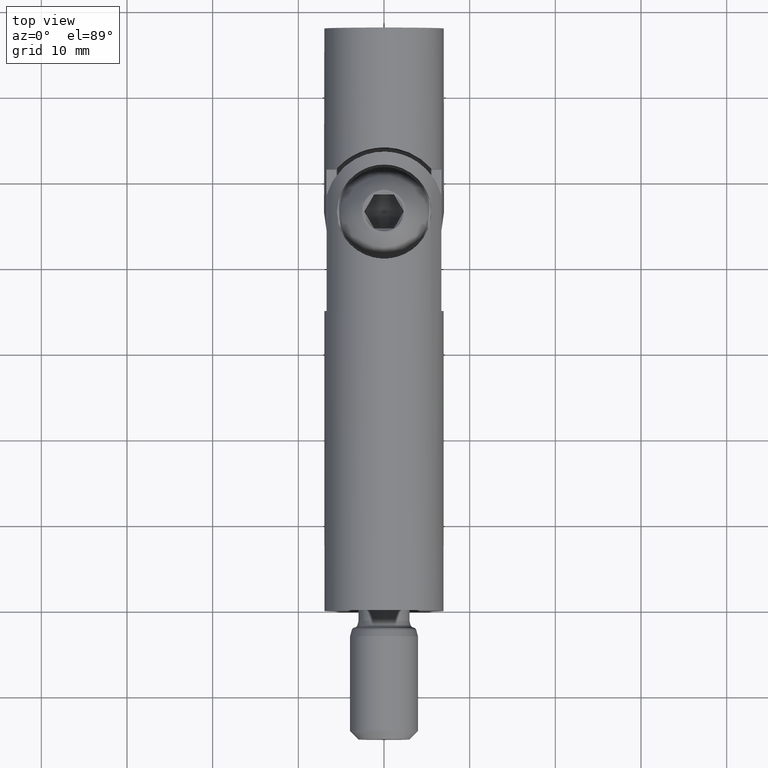
[diagram: clean part render]
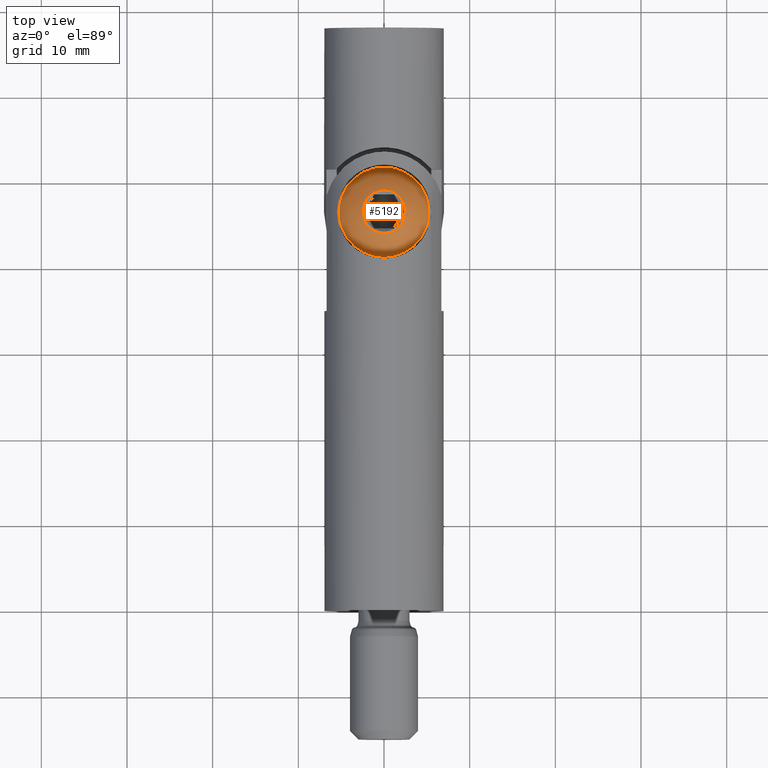
[diagram: same view with one face highlighted and labeled with its STEP entity id]
A machine part, top view. The second image highlights one B-rep face of the part: STEP entity #5192.
In plain terms, the highlighted spherical surface has radius 5.5869 mm.
Its self-contained STEP definition (entity closure, byte-faithful):
#2392 = AXIS2_PLACEMENT_3D ( 'NONE', #7958, #16735, #18208 ) ;
#3230 = EDGE_LOOP ( 'NONE', ( #16973 ) ) ;
#4066 = DIRECTION ( 'NONE',  ( 1.000000000000000000, 0.000000000000000000, 0.000000000000000000 ) ) ;
#5192 = ADVANCED_FACE ( 'NONE', ( #5825, #15868 ), #8772, .T. ) ;
#5199 = CARTESIAN_POINT ( 'NONE',  ( 0.000000000000000000, 0.000000000000000000, 0.000000000000000000 ) ) ;
#5825 = FACE_OUTER_BOUND ( 'NONE', #6389, .T. ) ;
#6389 = EDGE_LOOP ( 'NONE', ( #15273 ) ) ;
#6579 = DIRECTION ( 'NONE',  ( -0.000000000000000000, -1.000000000000000000, -0.000000000000000000 ) ) ;
#7270 = VERTEX_POINT ( 'NONE', #8577 ) ;
#7616 = AXIS2_PLACEMENT_3D ( 'NONE', #13017, #14310, #4066 ) ;
#7958 = CARTESIAN_POINT ( 'NONE',  ( 0.000000000000000000, 3.061350000000000016, 0.000000000000000000 ) ) ;
#8195 = VERTEX_POINT ( 'NONE', #13281 ) ;
#8577 = CARTESIAN_POINT ( 'NONE',  ( 0.000000000000000000, 3.061350000000000016, -5.250000000000000000 ) ) ;
#8772 = SPHERICAL_SURFACE ( 'NONE', #7616, 5.586852254659162575 ) ;
#9510 = DIRECTION ( 'NONE',  ( 0.000000000000000000, 0.000000000000000000, -1.000000000000000000 ) ) ;
#9876 = EDGE_CURVE ( 'NONE', #7270, #7270, #17674, .T. ) ;
#13017 = CARTESIAN_POINT ( 'NONE',  ( 0.000000000000000000, 4.971956740119527929, 0.000000000000000000 ) ) ;
#13281 = CARTESIAN_POINT ( 'NONE',  ( 0.000000000000000000, 0.000000000000000000, -2.548051076758501843 ) ) ;
#13780 = AXIS2_PLACEMENT_3D ( 'NONE', #5199, #6579, #9510 ) ;
#14310 = DIRECTION ( 'NONE',  ( 0.000000000000000000, 0.000000000000000000, 1.000000000000000000 ) ) ;
#15273 = ORIENTED_EDGE ( 'NONE', *, *, #9876, .T. ) ;
#15723 = CIRCLE ( 'NONE', #13780, 2.548051076758501843 ) ;
#15868 = FACE_OUTER_BOUND ( 'NONE', #3230, .T. ) ;
#16735 = DIRECTION ( 'NONE',  ( -0.000000000000000000, -1.000000000000000000, -0.000000000000000000 ) ) ;
#16973 = ORIENTED_EDGE ( 'NONE', *, *, #18753, .F. ) ;
#17674 = CIRCLE ( 'NONE', #2392, 5.250000000000000000 ) ;
#18208 = DIRECTION ( 'NONE',  ( 0.000000000000000000, 0.000000000000000000, -1.000000000000000000 ) ) ;
#18753 = EDGE_CURVE ( 'NONE', #8195, #8195, #15723, .T. ) ;